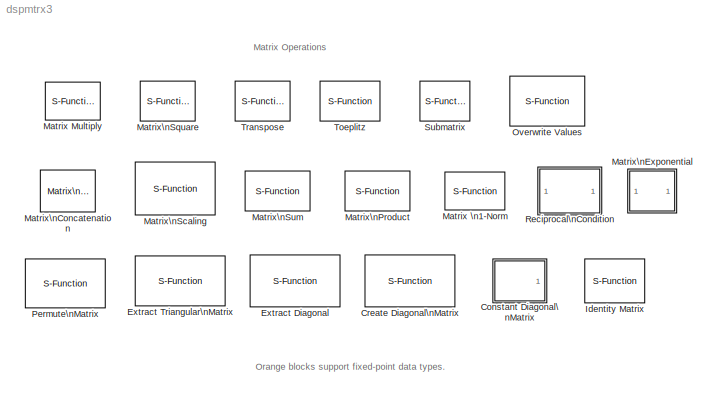
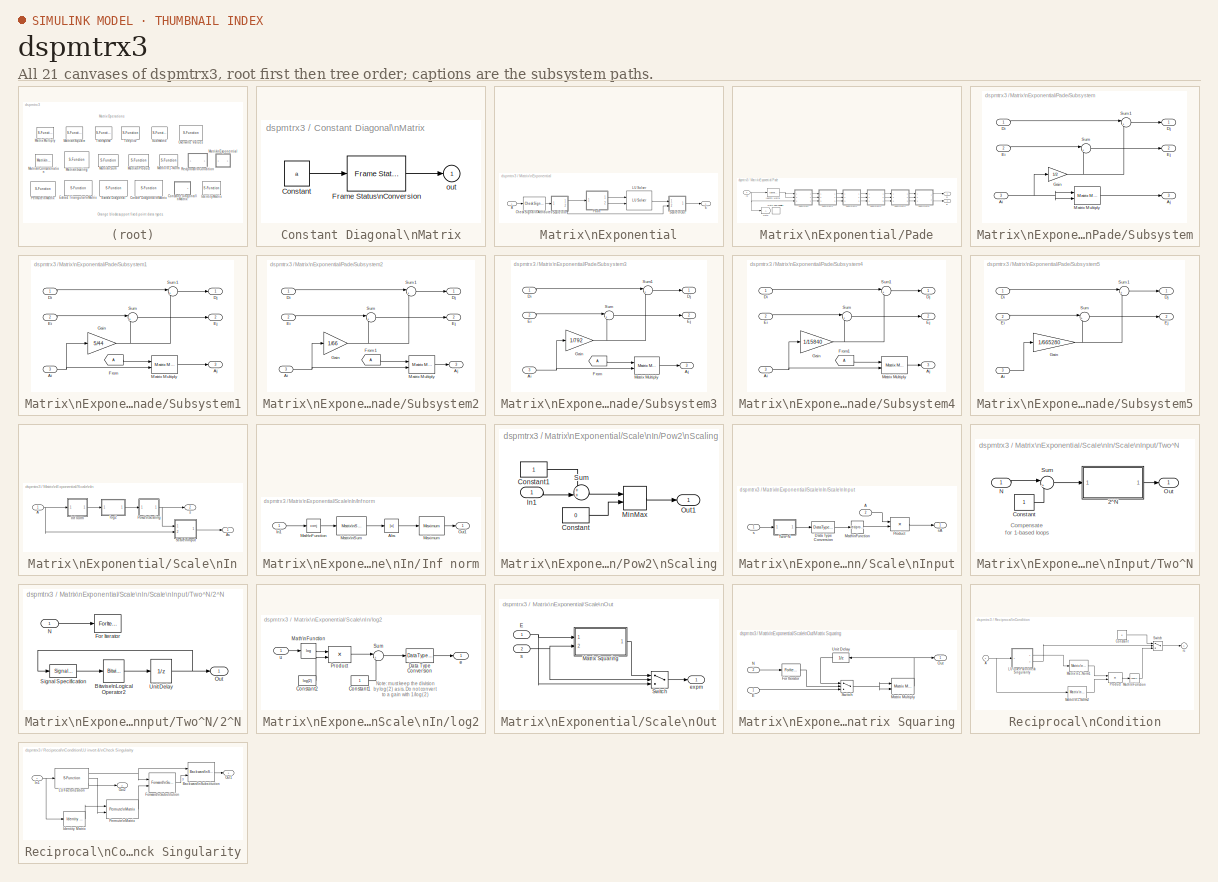
[diagram: thumbnail index - all 21 canvases of the model, root first then tree order]
MODEL dspmtrx3
KIND library
BLOCK [SubSystem] Constant Diagonal\nMatrix
  CopyFcn = dspfixptcopycallback
  MaskCallbackString = ||||dspblkconstdiag;|||dspblkconstdiag;|dspblkconstdiag;|
  MaskDescription = Generate a diagonal matrix having elements specified by a vector constant.
  MaskDisplay = plot(x,y)
  MaskEnableString = on,on,off,off,on,on,on,on,on,on
  MaskHelp = web(dspbhelp);
  MaskIconFrame = on
  MaskIconOpaque = on
  MaskIconRotate = none
  MaskIconUnits = autoscale
  MaskInitialization = [a,x,y] = dspblkconstdiag('icon',q);\ndspblkconstdiag('init');
  MaskPromptString = Constant(s) along diagonal:|Frame-based output|------- Show additional parameters --------|Allow overrides by DSP Fixed-Point Attributes blocks|Output data type:|Signed|Word length:|User-defined data type:|Set fraction length in output to:|Fraction length:
  MaskSelfModifiable = on
  MaskStyleString = edit,checkbox,checkbox,checkbox,popup(double|single|int8|uint8|int16|uint16|int32|uint32|boolean|Fixed-point|User-defined|Inherit from 'Constant(s) along diagonal'|Inherit via back propagation),checkbox,edit,edit,popup(Best precision|User-defined),edit
  MaskTabNameString = Main,Main,Main,Main,Data Types,Data Types,Data Types,Data Types,Data Types,Data Types
  MaskToolTipString = on,on,on,on,on,on,on,on,on,on
  MaskTunableValueString = on,off,off,off,off,off,off,off,off,off
  MaskType = Constant Diagonal Matrix
  MaskValueString = ones(1,3)|off|off|on|Inherit from 'Constant(s) along diagonal'|on|16|sfix(16)|Best precision|15
  MaskVarAliasString = ,,,,,,,,,
  MaskVariables = q=@1;frame=@2;additionalParams=@3;allowOverrides=@4;dataType=@5;isSigned=@6;wordLen=@7;udDataType=@8;fracBitsMode=@9;numFracBits=@10;
  MaskVisibilityString = on,on,off,off,on,off,off,off,off,off
  MinAlgLoopOccurrences = off
  Ports = [0, 1]
  PropExecContextAcrossSSBoundary = on
  RTWSystemCode = Auto
  ShowPortLabels = off
  TreatAsAtomicUnit = off
BLOCK [Constant] Constant Diagonal\nMatrix/Constant
  Value = a
BLOCK [Reference] Constant Diagonal\nMatrix/Frame Status\nConversion  REF=dspsigattribs/Frame Status\nConversion
  Ports = [1, 1]
  ShowPortLabels = off
  SourceBlock = dspsigattribs/Frame Status\nConversion
  SourceType = Frame Status Conversion
  growRefPort = off
  outframe = Sample-based
BLOCK [Outport] Constant Diagonal\nMatrix/out
  BusOutputAsStruct = off
  IconDisplay = Port number
  InitialOutput = 0
BLOCK [S-Function] Create Diagonal\nMatrix
  CopyFcn = dspfixptcopycallback
  FunctionName = sdspdiag2
  MaskDescription = Convert a vector of diagonal elements to a full matrix.
  MaskDisplay = plot(x,y);\nport_label('input',1,'D');\nport_label('output',1,'A');
  MaskHelp = web(dspbhelp);
  MaskIconFrame = on
  MaskIconOpaque = on
  MaskIconRotate = none
  MaskIconUnits = normalized
  MaskInitialization = mode = 1;\nx = [.58 .87 .87 .58 .58 NaN 0.45 0.12 NaN 0.525 0.525 0.475 0.475 0.525 0.525 0.565 0.525 ];\ny = [ 0.2 0.2 0.8 0.8 0.2 NaN 0.2 0.8 NaN 0.435 0.475 0.475 0.525 0.525 0.565 0.5 0.435 ];
  MaskSelfModifiable = on
  MaskType = Create Diagonal Matrix
  Parameters = mode
  Ports = [1, 1]
BLOCK [S-Function] Extract Diagonal
  CopyFcn = dspfixptcopycallback
  FunctionName = sdspdiag2
  MaskDescription = Extract the main diagonal of a full matrix.
  MaskDisplay = plot(x,y);\nport_label('input',1,'A');\nport_label('output',1,'D');
  MaskHelp = web(dspbhelp);
  MaskIconFrame = on
  MaskIconOpaque = on
  MaskIconRotate = none
  MaskIconUnits = normalized
  MaskInitialization = mode = 2;\nx = [.58 .87 NaN 0.12 0.45 0.45 0.12 0.12 NaN 0.525 0.525 0.475 0.475 0.525 0.525 0.565 0.525 ];\ny = [ 0.8 0.2 NaN 0.2 0.2 0.8 0.8 0.2 NaN 0.435 0.475 0.475 0.525 0.525 0.565 0.5 0.435 ];
  MaskSelfModifiable = on
  MaskType = Extract Diagonal
  Parameters = mode
  Ports = [1, 1]
BLOCK [S-Function] Extract Triangular\nMatrix
  CopyFcn = dspfixptcopycallback
  FunctionName = sdsptri2
  MaskDescription = Extract upper or lower triangular part of input matrix.
  MaskDisplay = plot(x,y);\nport_label('input',1,'A');\nport_label('output',1,s);\n
  MaskEnableString = on
  MaskHelp = web(dspbhelp);
  MaskIconFrame = on
  MaskIconOpaque = on
  MaskIconRotate = none
  MaskIconUnits = normalized
  MaskInitialization = [s,x,y] = dspblktri(fcn);
  MaskPromptString = Extract:
  MaskSelfModifiable = on
  MaskStyleString = popup(Upper|Lower)
  MaskToolTipString = on
  MaskTunableValueString = on
  MaskType = Extract Triangular Matrix
  MaskValueString = Upper
  MaskVariables = fcn=@1;
  MaskVisibilityString = on
  Parameters = fcn
  Ports = [1, 1]
BLOCK [S-Function] Identity Matrix
  CopyFcn = dspfixptcopycallback
  FunctionName = sdspeye
  MaskCallbackString = dspblkeye|||||dspblkeye|||dspblkeye|dspblkeye|
  MaskDescription = Output an identity matrix.  If the matrix size entered is a scalar, then the output will be a square (symmetric) identity matrix with the number of rows and columns both equal to the specified value.  If the matrix size entered is a two-element vector [M N], then the output will be an asymmetric matrix with the number of rows equal to M, the number of columns equal to N, ones down the diagonal, an...<+101ch>
  MaskDisplay = disp(str)
  MaskEnableString = on,on,on,off,off,on,on,on,on,on,on
  MaskHelp = web(dspbhelp);
  MaskIconFrame = on
  MaskIconOpaque = on
  MaskIconRotate = none
  MaskIconUnits = autoscale
  MaskInitialization = if Inherit,\n   str = 'eye( )';\nelse\n   str = ['eye(' ,num2str(&2),')'];\nend\n[dtInfo,dTypeID]=dspblkeye('init');\nisSigned=dtInfo.DataTypeIsSigned;\nisCustomFloat=dtInfo.DataTypeIsCustomFloat;\nwordLength=dtInfo.DataTypeWordLength;\nfracBits=dtInfo.DataTypeFracOrMantBits;\n
  MaskPromptString = Inherit output port attributes from input port|Matrix size:|Sample time:|------- Show additional parameters --------|Allow overrides by DSP Fixed-Point Attributes blocks|Output data type:|Signed|Word length:|User-defined data type (e.g. sfix(16), float('single')):|Set fraction length in output to:|Fraction length:
  MaskSelfModifiable = on
  MaskStyleString = checkbox,edit,edit,checkbox,checkbox,popup(double|single|int8|uint8|int16|uint16|int32|uint32|boolean|Fixed-point|User-defined|Inherit via back propagation),checkbox,edit,edit,popup(Best precision|User-defined),edit
  MaskTabNameString = Main,Main,Main,Main,Main,Data Types,Data Types,Data Types,Data Types,Data Types,Data Types
  MaskToolTipString = on,on,on,on,on,on,on,on,on,on,on
  MaskTunableValueString = off,off,off,off,off,off,off,off,off,off,off
  MaskType = Identity Matrix
  MaskValueString = off|5|1|off|on|double|on|16|sfix(16)|Best precision|15
  MaskVarAliasString = ,,,,,dtype,,,,,
  MaskVariables = Inherit=@1;N=@2;Ts=@3;additionalParams=@4;allowOverrides=@5;dataType=@6;isSigned=@7;wordLen=@8;udDataType=@9;fracBitsMode=@10;numFracBits=@11;
  MaskVisibilityString = on,on,on,off,off,on,off,off,off,off,off
  Parameters = Inherit,N,Ts,isCustomFloat,isSigned,dTypeID,wordLength,fracBits,1
  Ports = [0, 1]
BLOCK [S-Function] Matrix Multiply
  FunctionName = sdspmmult2
  MaskCallbackString = |
  MaskDescription = Multiply input matrices.
  MaskDisplay = port_label('input',1, 'A'); port_label('input',2, 'B'); port_label('output', 1, 'A*B');
  MaskEnableString = on,on
  MaskHelp = web(dspbhelp);
  MaskIconFrame = on
  MaskIconOpaque = on
  MaskIconRotate = none
  MaskIconUnits = autoscale
  MaskInitialization = dspblkmmult(numInputPorts);\n
  MaskPromptString = Number of input ports:|Optimization:
  MaskSelfModifiable = on
  MaskStyleString = edit,popup(None|Memory|Flops)
  MaskTabNameString = ,
  MaskToolTipString = on,on
  MaskTunableValueString = off,off
  MaskType = Matrix Multiply
  MaskValueString = 2|None
  MaskVarAliasString = ,
  MaskVariables = numInputPorts=@1;OptimizationLevel=@2;
  MaskVisibilityString = on,off
  Parameters = numInputPorts,OptimizationLevel
  Ports = [2, 1]
BLOCK [S-Function] Matrix \n1-Norm
  CopyFcn = dspfixptcopycallback
  DialogController = dspDDGCreate
  DialogControllerArgs = DataTag3
  FunctionName = sdspm1norm2
  MaskCallbackString = |||||||||
  MaskDescription = Compute the matrix 1-norm, which is the largest column sum of absolute values. Note that unoriented input signals are treated as oriented column vectors. The output of this block is always oriented.
  MaskDisplay = disp('Matrix\\n1-Norm')
  MaskEnableString = off,on,on,on,on,on,on,on,on,on
  MaskHelp = web(dspbhelp);
  MaskIconFrame = on
  MaskIconOpaque = on
  MaskIconRotate = none
  MaskIconUnits = autoscale
  MaskInitialization = dtInfo = dspGetFixptDataTypeInfo(gcbh,7);
  MaskPromptString = Allow overrides from DSP Fixed-Point Attributes blocks|Fixed-point output attributes:|Output word length:|Output fraction length:|Fixed-point accumulator attributes:|Accumulator word length:|Accumulator fraction length:|Round integer calculations toward:|Saturate on integer overflow|Lock scaling
  MaskSelfModifiable = on
  MaskStyleString = checkbox,popup(Same as accumulator|Same as input|Binary point scaling|Slope and bias scaling|User-defined),edit,edit,popup(Inherit via internal rule|Same as input|Binary point scaling|Slope and bias scaling|User-defined),edit,edit,popup(Floor|Nearest),checkbox,checkbox
  MaskTabNameString = ,,,,,,,,,
  MaskToolTipString = on,on,on,on,on,on,on,on,on,on
  MaskTunableValueString = off,off,off,off,off,off,off,off,off,off
  MaskType = Matrix 1-Norm
  MaskValueString = on|Same as accumulator|16|15|Inherit via internal rule|32|30|Floor|off|off
  MaskVarAliasString = ,,,,,,,,,
  MaskVariables = allowOverrides=@1;outputMode=@2;outputWordLength=@3;outputFracLength=@4;accumMode=@5;accumWordLength=@6;accumFracLength=@7;roundingMode=@8;overflowMode=@9;LockScale=@10;
  MaskVisibilityString = off,on,on,on,on,on,on,on,on,on
  Parameters = dtInfo.accumMode,dtInfo.accumWordLength,dtInfo.accumFracLength,dtInfo.outputMode,dtInfo.outputWordLength,dtInfo.outputFracLength,dtInfo.roundingMode,dtInfo.overflowMode
  Ports = [1, 1]
BLOCK [Reference] Matrix\nConcatenation  REF=simulink/Math\nOperations/Matrix\nConcatenation
  Ports = [2, 1]
  SourceBlock = simulink/Math\nOperations/Matrix\nConcatenation
  SourceType = Matrix Concatenation
  catMethod = Horizontal
  numInports = 2
BLOCK [SubSystem] Matrix\nExponential
  MaskDescription = Compute the matrix exponential, using a scaling and squaring algorithm with a Pade approximation.  Matrix must be square.
  MaskDisplay = disp('expm')
  MaskHelp = web(dspbhelp);
  MaskIconFrame = on
  MaskIconOpaque = on
  MaskIconRotate = none
  MaskIconUnits = autoscale
  MaskType = Matrix Exponential
  MinAlgLoopOccurrences = off
  Ports = [1, 1]
  PropExecContextAcrossSSBoundary = on
  RTWSystemCode = Auto
  TreatAsAtomicUnit = off
BLOCK [Inport] Matrix\nExponential/A
  IconDisplay = Port number
  LatchInput = off
BLOCK [Reference] Matrix\nExponential/Check Signal\nAttributes  REF=dspsigattribs/Check Signal\nAttributes
  Complexity = Ignore
  DatatypeCheckMethod = Is...
  DatatypeGeneral = Floating-point
  Dimensions = Square matrix (2-D)
  DimsCheckMethod = Is...
  DtypeFixedSpecific = Any fixed-point
  DtypeFloatSpecific = Any floating-point
  DtypeIntSpecific = Any integer
  Frame = Sample-based
  Ports = [1, 1]
  SampleMode = Ignore
  ShowPortLabels = on
  SigAttribCheckMethod = Does not match attributes exactly
  SourceBlock = dspsigattribs/Check Signal\nAttributes
  SourceType = Check Signal Attributes
BLOCK [Outport] Matrix\nExponential/E
  BusOutputAsStruct = off
  IconDisplay = Port number
BLOCK [Reference] Matrix\nExponential/LU Solver  REF=dspsolvers/LU Solver
  Ports = [2, 1]
  ShowPortLabels = on
  SourceBlock = dspsolvers/LU Solver
  SourceType = LU Solver
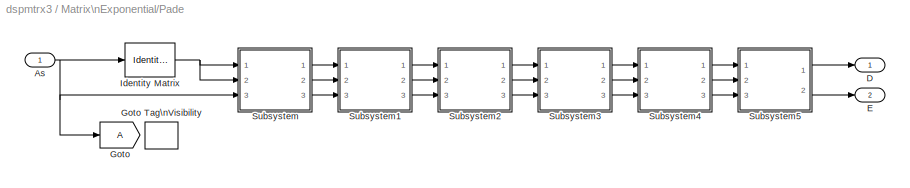
BLOCK [SubSystem] Matrix\nExponential/Pade
  MaskDisplay = disp('Pade\\nApprox')
  MaskIconFrame = on
  MaskIconOpaque = off
  MaskIconRotate = none
  MaskIconUnits = autoscale
  MinAlgLoopOccurrences = off
  Ports = [1, 2]
  PropExecContextAcrossSSBoundary = on
  RTWSystemCode = Auto
  TreatAsAtomicUnit = off
BLOCK [Inport] Matrix\nExponential/Pade/As
  IconDisplay = Port number
  LatchInput = off
BLOCK [Outport] Matrix\nExponential/Pade/D
  BusOutputAsStruct = off
  IconDisplay = Port number
BLOCK [Outport] Matrix\nExponential/Pade/E
  BusOutputAsStruct = off
  IconDisplay = Port number
  Port = 2
BLOCK [Goto] Matrix\nExponential/Pade/Goto
  DialogController = Simulink.DDGSource
  GotoTag = A
  TagVisibility = scoped
BLOCK [GotoTagVisibility] Matrix\nExponential/Pade/Goto Tag\nVisibility
BLOCK [Reference] Matrix\nExponential/Pade/Identity Matrix  REF=dspmtrx3/Identity Matrix
  Inherit = on
  N = 5
  Ports = [1, 1]
  SourceBlock = dspmtrx3/Identity Matrix
  SourceType = Identity Matrix
  Ts = 1
  additionalParams = off
  dataType = double
  fracBitsMode = Best precision
  numFracBits = 15
  udDataType = sfix(16)
  wordLen = 16
BLOCK [SubSystem] Matrix\nExponential/Pade/Subsystem
  MaskDisplay = disp('Pade\\n1')
  MaskIconFrame = on
  MaskIconOpaque = off
  MaskIconRotate = none
  MaskIconUnits = autoscale
  MinAlgLoopOccurrences = off
  Ports = [3, 3]
  PropExecContextAcrossSSBoundary = on
  RTWSystemCode = Auto
  TreatAsAtomicUnit = off
BLOCK [Inport] Matrix\nExponential/Pade/Subsystem/Ai
  IconDisplay = Port number
  LatchInput = off
  Port = 3
BLOCK [Outport] Matrix\nExponential/Pade/Subsystem/Aj
  BusOutputAsStruct = off
  IconDisplay = Port number
  Port = 3
BLOCK [Inport] Matrix\nExponential/Pade/Subsystem/Di
  IconDisplay = Port number
  LatchInput = off
BLOCK [Outport] Matrix\nExponential/Pade/Subsystem/Dj
  BusOutputAsStruct = off
  IconDisplay = Port number
BLOCK [Inport] Matrix\nExponential/Pade/Subsystem/Ei
  IconDisplay = Port number
  LatchInput = off
  Port = 2
BLOCK [Outport] Matrix\nExponential/Pade/Subsystem/Ej
  BusOutputAsStruct = off
  IconDisplay = Port number
  Port = 2
BLOCK [Gain] Matrix\nExponential/Pade/Subsystem/Gain
  Gain = 1/2
  ParameterDataType = float('single')
BLOCK [Reference] Matrix\nExponential/Pade/Subsystem/Matrix Multiply  REF=dspmtrx3/Matrix Multiply
  OptimizationLevel = None
  Ports = [2, 1]
  SourceBlock = dspmtrx3/Matrix Multiply
  SourceType = Matrix Multiply
  numInputPorts = 2
BLOCK [Sum] Matrix\nExponential/Pade/Subsystem/Sum
  IconShape = round
  InputSameDT = off
  Inputs = |++
  OutDataTypeMode = Inherit via back propagation
  Ports = [2, 1]
BLOCK [Sum] Matrix\nExponential/Pade/Subsystem/Sum1
  IconShape = round
  InputSameDT = off
  Inputs = |+-
  OutDataTypeMode = Inherit via back propagation
  Ports = [2, 1]
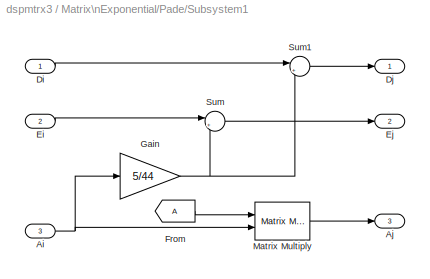
BLOCK [SubSystem] Matrix\nExponential/Pade/Subsystem1
  MaskDisplay = disp('Pade\\n2')
  MaskIconFrame = on
  MaskIconOpaque = off
  MaskIconRotate = none
  MaskIconUnits = autoscale
  MinAlgLoopOccurrences = off
  Ports = [3, 3]
  PropExecContextAcrossSSBoundary = on
  RTWSystemCode = Auto
  TreatAsAtomicUnit = off
BLOCK [Inport] Matrix\nExponential/Pade/Subsystem1/Ai
  IconDisplay = Port number
  LatchInput = off
  Port = 3
BLOCK [Outport] Matrix\nExponential/Pade/Subsystem1/Aj
  BusOutputAsStruct = off
  IconDisplay = Port number
  Port = 3
BLOCK [Inport] Matrix\nExponential/Pade/Subsystem1/Di
  IconDisplay = Port number
  LatchInput = off
BLOCK [Outport] Matrix\nExponential/Pade/Subsystem1/Dj
  BusOutputAsStruct = off
  IconDisplay = Port number
BLOCK [Inport] Matrix\nExponential/Pade/Subsystem1/Ei
  IconDisplay = Port number
  LatchInput = off
  Port = 2
BLOCK [Outport] Matrix\nExponential/Pade/Subsystem1/Ej
  BusOutputAsStruct = off
  IconDisplay = Port number
  Port = 2
BLOCK [From] Matrix\nExponential/Pade/Subsystem1/From
  CloseFcn = tagdialog Close
  DialogController = Simulink.DDGSource
  GotoTag = A
BLOCK [Gain] Matrix\nExponential/Pade/Subsystem1/Gain
  Gain = 5/44
  SaturateOnIntegerOverflow = off
BLOCK [Reference] Matrix\nExponential/Pade/Subsystem1/Matrix Multiply  REF=dspmtrx3/Matrix Multiply
  OptimizationLevel = None
  Ports = [2, 1]
  SourceBlock = dspmtrx3/Matrix Multiply
  SourceType = Matrix Multiply
  numInputPorts = 2
BLOCK [Sum] Matrix\nExponential/Pade/Subsystem1/Sum
  IconShape = round
  InputSameDT = off
  Inputs = |++
  OutDataTypeMode = Inherit via back propagation
  Ports = [2, 1]
BLOCK [Sum] Matrix\nExponential/Pade/Subsystem1/Sum1
  IconShape = round
  InputSameDT = off
  Inputs = |++
  OutDataTypeMode = Inherit via back propagation
  Ports = [2, 1]
BLOCK [SubSystem] Matrix\nExponential/Pade/Subsystem2
  MaskDisplay = disp('Pade\\n3')
  MaskIconFrame = on
  MaskIconOpaque = off
  MaskIconRotate = none
  MaskIconUnits = autoscale
  MinAlgLoopOccurrences = off
  Ports = [3, 3]
  PropExecContextAcrossSSBoundary = on
  RTWSystemCode = Auto
  TreatAsAtomicUnit = off
BLOCK [Inport] Matrix\nExponential/Pade/Subsystem2/Ai
  IconDisplay = Port number
  LatchInput = off
  Port = 3
BLOCK [Outport] Matrix\nExponential/Pade/Subsystem2/Aj
  BusOutputAsStruct = off
  IconDisplay = Port number
  Port = 3
BLOCK [Inport] Matrix\nExponential/Pade/Subsystem2/Di
  IconDisplay = Port number
  LatchInput = off
BLOCK [Outport] Matrix\nExponential/Pade/Subsystem2/Dj
  BusOutputAsStruct = off
  IconDisplay = Port number
BLOCK [Inport] Matrix\nExponential/Pade/Subsystem2/Ei
  IconDisplay = Port number
  LatchInput = off
  Port = 2
BLOCK [Outport] Matrix\nExponential/Pade/Subsystem2/Ej
  BusOutputAsStruct = off
  IconDisplay = Port number
  Port = 2
BLOCK [From] Matrix\nExponential/Pade/Subsystem2/From1
  CloseFcn = tagdialog Close
  DialogController = Simulink.DDGSource
  GotoTag = A
BLOCK [Gain] Matrix\nExponential/Pade/Subsystem2/Gain
  Gain = 1/66
  SaturateOnIntegerOverflow = off
BLOCK [Reference] Matrix\nExponential/Pade/Subsystem2/Matrix Multiply  REF=dspmtrx3/Matrix Multiply
  OptimizationLevel = None
  Ports = [2, 1]
  SourceBlock = dspmtrx3/Matrix Multiply
  SourceType = Matrix Multiply
  numInputPorts = 2
BLOCK [Sum] Matrix\nExponential/Pade/Subsystem2/Sum
  IconShape = round
  InputSameDT = off
  Inputs = |++
  OutDataTypeMode = Inherit via back propagation
  Ports = [2, 1]
BLOCK [Sum] Matrix\nExponential/Pade/Subsystem2/Sum1
  IconShape = round
  InputSameDT = off
  Inputs = |+-
  OutDataTypeMode = Inherit via back propagation
  Ports = [2, 1]
BLOCK [SubSystem] Matrix\nExponential/Pade/Subsystem3
  MaskDisplay = disp('Pade\\n4')
  MaskIconFrame = on
  MaskIconOpaque = off
  MaskIconRotate = none
  MaskIconUnits = autoscale
  MinAlgLoopOccurrences = off
  Ports = [3, 3]
  PropExecContextAcrossSSBoundary = on
  RTWSystemCode = Auto
  TreatAsAtomicUnit = off
BLOCK [Inport] Matrix\nExponential/Pade/Subsystem3/Ai
  IconDisplay = Port number
  LatchInput = off
  Port = 3
BLOCK [Outport] Matrix\nExponential/Pade/Subsystem3/Aj
  BusOutputAsStruct = off
  IconDisplay = Port number
  Port = 3
BLOCK [Inport] Matrix\nExponential/Pade/Subsystem3/Di
  IconDisplay = Port number
  LatchInput = off
BLOCK [Outport] Matrix\nExponential/Pade/Subsystem3/Dj
  BusOutputAsStruct = off
  IconDisplay = Port number
BLOCK [Inport] Matrix\nExponential/Pade/Subsystem3/Ei
  IconDisplay = Port number
  LatchInput = off
  Port = 2
BLOCK [Outport] Matrix\nExponential/Pade/Subsystem3/Ej
  BusOutputAsStruct = off
  IconDisplay = Port number
  Port = 2
BLOCK [From] Matrix\nExponential/Pade/Subsystem3/From
  CloseFcn = tagdialog Close
  DialogController = Simulink.DDGSource
  GotoTag = A
BLOCK [Gain] Matrix\nExponential/Pade/Subsystem3/Gain
  Gain = 1/792
  SaturateOnIntegerOverflow = off
BLOCK [Reference] Matrix\nExponential/Pade/Subsystem3/Matrix Multiply  REF=dspmtrx3/Matrix Multiply
  OptimizationLevel = None
  Ports = [2, 1]
  SourceBlock = dspmtrx3/Matrix Multiply
  SourceType = Matrix Multiply
  numInputPorts = 2
BLOCK [Sum] Matrix\nExponential/Pade/Subsystem3/Sum
  IconShape = round
  InputSameDT = off
  Inputs = |++
  OutDataTypeMode = Inherit via back propagation
  Ports = [2, 1]
BLOCK [Sum] Matrix\nExponential/Pade/Subsystem3/Sum1
  IconShape = round
  InputSameDT = off
  Inputs = |++
  OutDataTypeMode = Inherit via back propagation
  Ports = [2, 1]
BLOCK [SubSystem] Matrix\nExponential/Pade/Subsystem4
  MaskDisplay = disp('Pade\\n5')
  MaskIconFrame = on
  MaskIconOpaque = off
  MaskIconRotate = none
  MaskIconUnits = autoscale
  MinAlgLoopOccurrences = off
  Ports = [3, 3]
  PropExecContextAcrossSSBoundary = on
  RTWSystemCode = Auto
  TreatAsAtomicUnit = off
BLOCK [Inport] Matrix\nExponential/Pade/Subsystem4/Ai
  IconDisplay = Port number
  LatchInput = off
  Port = 3
BLOCK [Outport] Matrix\nExponential/Pade/Subsystem4/Aj
  BusOutputAsStruct = off
  IconDisplay = Port number
  Port = 3
BLOCK [Inport] Matrix\nExponential/Pade/Subsystem4/Di
  IconDisplay = Port number
  LatchInput = off
BLOCK [Outport] Matrix\nExponential/Pade/Subsystem4/Dj
  BusOutputAsStruct = off
  IconDisplay = Port number
BLOCK [Inport] Matrix\nExponential/Pade/Subsystem4/Ei
  IconDisplay = Port number
  LatchInput = off
  Port = 2
BLOCK [Outport] Matrix\nExponential/Pade/Subsystem4/Ej
  BusOutputAsStruct = off
  IconDisplay = Port number
  Port = 2
BLOCK [From] Matrix\nExponential/Pade/Subsystem4/From1
  CloseFcn = tagdialog Close
  DialogController = Simulink.DDGSource
  GotoTag = A
BLOCK [Gain] Matrix\nExponential/Pade/Subsystem4/Gain
  Gain = 1/15840
  SaturateOnIntegerOverflow = off
BLOCK [Reference] Matrix\nExponential/Pade/Subsystem4/Matrix Multiply  REF=dspmtrx3/Matrix Multiply
  OptimizationLevel = None
  Ports = [2, 1]
  SourceBlock = dspmtrx3/Matrix Multiply
  SourceType = Matrix Multiply
  numInputPorts = 2
BLOCK [Sum] Matrix\nExponential/Pade/Subsystem4/Sum
  IconShape = round
  InputSameDT = off
  Inputs = |++
  OutDataTypeMode = Inherit via back propagation
  Ports = [2, 1]
BLOCK [Sum] Matrix\nExponential/Pade/Subsystem4/Sum1
  IconShape = round
  InputSameDT = off
  Inputs = |+-
  OutDataTypeMode = Inherit via back propagation
  Ports = [2, 1]
BLOCK [SubSystem] Matrix\nExponential/Pade/Subsystem5
  MaskDisplay = disp('Pade\\n6')
  MaskIconFrame = on
  MaskIconOpaque = off
  MaskIconRotate = none
  MaskIconUnits = autoscale
  MinAlgLoopOccurrences = off
  Ports = [3, 2]
  PropExecContextAcrossSSBoundary = on
  RTWSystemCode = Auto
  TreatAsAtomicUnit = off
BLOCK [Inport] Matrix\nExponential/Pade/Subsystem5/Ai
  IconDisplay = Port number
  LatchInput = off
  Port = 3
BLOCK [Inport] Matrix\nExponential/Pade/Subsystem5/Di
  IconDisplay = Port number
  LatchInput = off
BLOCK [Outport] Matrix\nExponential/Pade/Subsystem5/Dj
  BusOutputAsStruct = off
  IconDisplay = Port number
BLOCK [Inport] Matrix\nExponential/Pade/Subsystem5/Ei
  IconDisplay = Port number
  LatchInput = off
  Port = 2
BLOCK [Outport] Matrix\nExponential/Pade/Subsystem5/Ej
  BusOutputAsStruct = off
  IconDisplay = Port number
  Port = 2
BLOCK [Gain] Matrix\nExponential/Pade/Subsystem5/Gain
  Gain = 1/665280
  SaturateOnIntegerOverflow = off
BLOCK [Sum] Matrix\nExponential/Pade/Subsystem5/Sum
  IconShape = round
  InputSameDT = off
  Inputs = |++
  OutDataTypeMode = Inherit via back propagation
  Ports = [2, 1]
BLOCK [Sum] Matrix\nExponential/Pade/Subsystem5/Sum1
  IconShape = round
  InputSameDT = off
  Inputs = |++
  OutDataTypeMode = Inherit via back propagation
  Ports = [2, 1]
BLOCK [SubSystem] Matrix\nExponential/Scale\nIn
  MinAlgLoopOccurrences = off
  Ports = [1, 2]
  PropExecContextAcrossSSBoundary = on
  RTWSystemCode = Auto
  TreatAsAtomicUnit = off
BLOCK [Inport] Matrix\nExponential/Scale\nIn/A
  IconDisplay = Port number
  LatchInput = off
BLOCK [Outport] Matrix\nExponential/Scale\nIn/As
  BusOutputAsStruct = off
  IconDisplay = Port number
BLOCK [SubSystem] Matrix\nExponential/Scale\nIn/Inf norm
  MaskDisplay = disp('inf\\nnorm')
  MaskIconFrame = on
  MaskIconOpaque = on
  MaskIconRotate = none
  MaskIconUnits = autoscale
  MinAlgLoopOccurrences = off
  Ports = [1, 1]
  PropExecContextAcrossSSBoundary = on
  RTWSystemCode = Auto
  TreatAsAtomicUnit = off
BLOCK [Abs] Matrix\nExponential/Scale\nIn/Inf norm/Abs
BLOCK [Inport] Matrix\nExponential/Scale\nIn/Inf norm/In1
  IconDisplay = Port number
  LatchInput = off
BLOCK [Math] Matrix\nExponential/Scale\nIn/Inf norm/Math\nFunction
  Operator = conj
  Ports = [1, 1]
BLOCK [Reference] Matrix\nExponential/Scale\nIn/Inf norm/Matrix\nSum  REF=dspmtrx3/Matrix\nSum
  Dim = Rows
  Ports = [1, 1]
  SourceBlock = dspmtrx3/Matrix\nSum
  SourceType = Matrix Sum
  accumFracLength = 30
  accumMode = Inherit via internal rule
  accumWordLength = 40
  additionalParams = off
  allowOverrides = on
  outputFracLength = 30
  outputMode = Same as accumulator
  outputWordLength = 32
  overflowMode = off
  roundingMode = Floor
BLOCK [Reference] Matrix\nExponential/Scale\nIn/Inf norm/Maximum  REF=dspstat3/Maximum
  Ports = [1, 1]
  SourceBlock = dspstat3/Maximum
  SourceType = Maximum
  accumFracLength = 30
  accumMode = Same as product output
  accumWordLength = 32
  additionalParams = off
  allowOverrides = on
  fcn = Value
  overflowMode = off
  prodOutputFracLength = 30
  prodOutputMode = Same as input
  prodOutputWordLength = 32
  reset = None
  roundingMode = Floor
BLOCK [Outport] Matrix\nExponential/Scale\nIn/Inf norm/Out1
  BusOutputAsStruct = off
  IconDisplay = Port number
BLOCK [SubSystem] Matrix\nExponential/Scale\nIn/Pow2\nScaling
  MaskDisplay = disp('s-scaling')
  MaskIconFrame = on
  MaskIconOpaque = on
  MaskIconRotate = none
  MaskIconUnits = autoscale
  MinAlgLoopOccurrences = off
  Ports = [1, 1]
  PropExecContextAcrossSSBoundary = on
  RTWSystemCode = Auto
  TreatAsAtomicUnit = off
BLOCK [Constant] Matrix\nExponential/Scale\nIn/Pow2\nScaling/Constant
  OutDataTypeMode = int32
  Value = 0
  VectorParams1D = off
BLOCK [Constant] Matrix\nExponential/Scale\nIn/Pow2\nScaling/Constant1
  OutDataTypeMode = int32
  VectorParams1D = off
BLOCK [Inport] Matrix\nExponential/Scale\nIn/Pow2\nScaling/In1
  IconDisplay = Port number
  LatchInput = off
BLOCK [MinMax] Matrix\nExponential/Scale\nIn/Pow2\nScaling/MinMax
  Function = max
  Inputs = 2
  Ports = [2, 1]
BLOCK [Outport] Matrix\nExponential/Scale\nIn/Pow2\nScaling/Out1
  BusOutputAsStruct = off
  IconDisplay = Port number
BLOCK [Sum] Matrix\nExponential/Scale\nIn/Pow2\nScaling/Sum
  IconShape = round
  InputSameDT = off
  Inputs = ++|
  OutDataTypeMode = Inherit via internal rule
  Ports = [2, 1]
BLOCK [SubSystem] Matrix\nExponential/Scale\nIn/Scale\nInput
  MinAlgLoopOccurrences = off
  Ports = [2, 1]
  PropExecContextAcrossSSBoundary = on
  RTWSystemCode = Auto
  TreatAsAtomicUnit = off
BLOCK [Inport] Matrix\nExponential/Scale\nIn/Scale\nInput/A
  IconDisplay = Port number
  LatchInput = off
  Port = 2
BLOCK [DataTypeConversion] Matrix\nExponential/Scale\nIn/Scale\nInput/Data Type Conversion
BLOCK [Math] Matrix\nExponential/Scale\nIn/Scale\nInput/Math\nFunction
  Operator = reciprocal
  Ports = [1, 1]
BLOCK [Product] Matrix\nExponential/Scale\nIn/Scale\nInput/Product
  InputSameDT = off
  Ports = [2, 1]
  RndMeth = Floor
BLOCK [SubSystem] Matrix\nExponential/Scale\nIn/Scale\nInput/Two^N
  MaskDisplay = disp('2.^N')
  MaskIconFrame = on
  MaskIconOpaque = on
  MaskIconRotate = none
  MaskIconUnits = autoscale
  MinAlgLoopOccurrences = off
  Ports = [1, 1]
  PropExecContextAcrossSSBoundary = on
  RTWSystemCode = Auto
  TreatAsAtomicUnit = off
BLOCK [SubSystem] Matrix\nExponential/Scale\nIn/Scale\nInput/Two^N/2^N
  MinAlgLoopOccurrences = off
  Ports = [1, 1]
  PropExecContextAcrossSSBoundary = on
  RTWSystemCode = Auto
  TreatAsAtomicUnit = on
BLOCK [Reference] Matrix\nExponential/Scale\nIn/Scale\nInput/Two^N/2^N/Bitwise\nLogical Operator2  REF=simulink/Math\nOperations/Bitwise\nLogical Operator
  Operand2 = 1
  Operator = SHIFT_LEFT
  Ports = [1, 1]
  SourceBlock = simulink/Math\nOperations/Bitwise\nLogical Operator
  SourceType = BitwiseOperator
BLOCK [ForIterator] Matrix\nExponential/Scale\nIn/Scale\nInput/Two^N/2^N/For Iterator
  IterationSource = external
  Ports = [1]
  ResetStates = reset
  ShowIterationPort = off
BLOCK [Inport] Matrix\nExponential/Scale\nIn/Scale\nInput/Two^N/2^N/N
  IconDisplay = Port number
  LatchInput = off
BLOCK [Outport] Matrix\nExponential/Scale\nIn/Scale\nInput/Two^N/2^N/Out
  BusOutputAsStruct = off
  IconDisplay = Port number
BLOCK [Reference] Matrix\nExponential/Scale\nIn/Scale\nInput/Two^N/2^N/Signal Specification  REF=simulink/Signal\nAttributes/Signal Specification
  D = -1
  DataType = uint32
  OutDataType = sfix(16)
  OutScaling = 2^0
  Ports = [1, 1]
  SamplingMode = auto
  SignalType = auto
  SourceBlock = simulink/Signal\nAttributes/Signal Specification
  SourceType = Signal Specification
  Ts = -1
BLOCK [UnitDelay] Matrix\nExponential/Scale\nIn/Scale\nInput/Two^N/2^N/Unit Delay
  SampleTime = -1
  X0 = uint32(1)
BLOCK [Constant] Matrix\nExponential/Scale\nIn/Scale\nInput/Two^N/Constant
  OutDataTypeMode = Inherit via back propagation
  VectorParams1D = off
BLOCK [Inport] Matrix\nExponential/Scale\nIn/Scale\nInput/Two^N/N
  IconDisplay = Port number
  LatchInput = off
BLOCK [Outport] Matrix\nExponential/Scale\nIn/Scale\nInput/Two^N/Out
  BusOutputAsStruct = off
  IconDisplay = Port number
BLOCK [Sum] Matrix\nExponential/Scale\nIn/Scale\nInput/Two^N/Sum
  IconShape = round
  InputSameDT = off
  Inputs = |++
  OutDataTypeMode = Inherit via internal rule
  Ports = [2, 1]
BLOCK [Inport] Matrix\nExponential/Scale\nIn/Scale\nInput/s
  IconDisplay = Port number
  LatchInput = off
BLOCK [Outport] Matrix\nExponential/Scale\nIn/Scale\nInput/sA
  BusOutputAsStruct = off
  IconDisplay = Port number
BLOCK [SubSystem] Matrix\nExponential/Scale\nIn/log2
  MaskDisplay = disp('log2')
  MaskIconFrame = on
  MaskIconOpaque = off
  MaskIconRotate = none
  MaskIconUnits = autoscale
  MinAlgLoopOccurrences = off
  Ports = [1, 1]
  PropExecContextAcrossSSBoundary = on
  RTWSystemCode = Auto
  TreatAsAtomicUnit = off
BLOCK [Constant] Matrix\nExponential/Scale\nIn/log2/Constant1
  OutDataTypeMode = Inherit via back propagation
  VectorParams1D = off
BLOCK [Constant] Matrix\nExponential/Scale\nIn/log2/Constant2
  OutDataTypeMode = Inherit via back propagation
  Value = log(2)
  VectorParams1D = off
BLOCK [DataTypeConversion] Matrix\nExponential/Scale\nIn/log2/Data Type Conversion
  OutDataTypeMode = int32
BLOCK [Math] Matrix\nExponential/Scale\nIn/log2/Math\nFunction
  Operator = log
  Ports = [1, 1]
BLOCK [Product] Matrix\nExponential/Scale\nIn/log2/Product
  InputSameDT = off
  Inputs = */
  Ports = [2, 1]
  RndMeth = Floor
BLOCK [Sum] Matrix\nExponential/Scale\nIn/log2/Sum
  IconShape = round
  InputSameDT = off
  Inputs = |++
  OutDataTypeMode = Inherit via back propagation
  Ports = [2, 1]
  RndMeth = Ceiling
  SaturateOnIntegerOverflow = off
BLOCK [Outport] Matrix\nExponential/Scale\nIn/log2/e
  BusOutputAsStruct = off
  IconDisplay = Port number
BLOCK [Inport] Matrix\nExponential/Scale\nIn/log2/u
  IconDisplay = Port number
  LatchInput = off
BLOCK [Outport] Matrix\nExponential/Scale\nIn/s
  BusOutputAsStruct = off
  IconDisplay = Port number
  Port = 2
BLOCK [SubSystem] Matrix\nExponential/Scale\nOut
  MinAlgLoopOccurrences = off
  Ports = [2, 1]
  PropExecContextAcrossSSBoundary = on
  RTWSystemCode = Auto
  TreatAsAtomicUnit = off
BLOCK [Inport] Matrix\nExponential/Scale\nOut/E
  IconDisplay = Port number
  LatchInput = off
BLOCK [SubSystem] Matrix\nExponential/Scale\nOut/Matrix Squaring
  MinAlgLoopOccurrences = off
  Ports = [2, 1]
  PropExecContextAcrossSSBoundary = on
  RTWSystemCode = Auto
  TreatAsAtomicUnit = on
BLOCK [Inport] Matrix\nExponential/Scale\nOut/Matrix Squaring/E
  IconDisplay = Port number
  LatchInput = off
BLOCK [ForIterator] Matrix\nExponential/Scale\nOut/Matrix Squaring/For Iterator
  IterationSource = external
  Ports = [1, 1]
  ResetStates = reset
BLOCK [Reference] Matrix\nExponential/Scale\nOut/Matrix Squaring/Matrix Multiply  REF=dspmtrx3/Matrix Multiply
  OptimizationLevel = None
  Ports = [2, 1]
  SourceBlock = dspmtrx3/Matrix Multiply
  SourceType = Matrix Multiply
  numInputPorts = 2
BLOCK [Inport] Matrix\nExponential/Scale\nOut/Matrix Squaring/N
  IconDisplay = Port number
  LatchInput = off
  Port = 2
BLOCK [Outport] Matrix\nExponential/Scale\nOut/Matrix Squaring/Out
  BusOutputAsStruct = off
  IconDisplay = Port number
BLOCK [Switch] Matrix\nExponential/Scale\nOut/Matrix Squaring/Switch
  Criteria = u2 > Threshold
  InputSameDT = off
  Threshold = 1
BLOCK [UnitDelay] Matrix\nExponential/Scale\nOut/Matrix Squaring/Unit Delay
  SampleTime = -1
BLOCK [Switch] Matrix\nExponential/Scale\nOut/Switch
  Criteria = u2 ~= 0
  InputSameDT = off
BLOCK [Outport] Matrix\nExponential/Scale\nOut/expm
  BusOutputAsStruct = off
  IconDisplay = Port number
BLOCK [Inport] Matrix\nExponential/Scale\nOut/s
  IconDisplay = Port number
  LatchInput = off
  Port = 2
BLOCK [S-Function] Matrix\nProduct
  CopyFcn = dspfixptcopycallback
  DialogController = dspDDGCreate
  DialogControllerArgs = DataTag0
  FunctionName = sdspmsumprod
  MaskCallbackString = |||||||||||||||||
  MaskDescription = Product of matrix elements along the row or column dimension. Note that 1-D input signals produce a single scalar output equal to the product of the individual elements.\n\nThe accumulator attributes are only used with complex fixed-point inputs.
  MaskDisplay = disp(str);
  MaskEnableString = on,off,off,on,on,on,on,on,on,on,on,on,on,on,on,on,on,on
  MaskHelp = web(dspbhelp);
  MaskIconFrame = on
  MaskIconOpaque = on
  MaskIconRotate = none
  MaskIconUnits = autoscale
  MaskInitialization = if (Dim==1), str='Row\\nProduct';\nelse str='Column\\nProduct';\nend\n\n%misc         1 USED\n%output       2 USED\n%accum        4 USED\n%prodOutput   8 USED\n%memory      16\n%firstCoeff  32\n%secondCoeff 64\n%thirdCoeff 128\n%interProd  256 USED\n%1+2+4+8+256 = 271\ndtInfo = dspGetFixptDataTypeInfo(gcbh,271);\n
  MaskPromptString = Multiply along:|------- Show additional parameters -------|Allow overrides from DSP Fixed-Point Attributes blocks|Fixed-point output attributes:|Output word length:|Output fraction length:|Fixed-point accumulator attributes:|Accumulator word length:|Accumulator fraction length:|Fixed-point product output attributes:|Product output word length:|Product output fraction length:|Fixed-point intermedia...<+171ch>
  MaskSelfModifiable = on
  MaskStyleString = popup(Rows|Columns),checkbox,checkbox,popup(Same as product output|Same as input|Binary point scaling|Slope and bias scaling|User-defined),edit,edit,popup(Inherit via internal rule|Same as product output|Same as input|Binary point scaling|Slope and bias scaling|User-defined),edit,edit,popup(Inherit via internal rule|Same as input|Binary point scaling|Slope and bias scaling|User-defined),edit,edit,...<+126ch>
  MaskTabNameString = ,,,,,,,,,,,,,,,,,
  MaskToolTipString = on,on,on,on,on,on,on,on,on,on,on,on,on,on,on,on,on,on
  MaskTunableValueString = off,off,off,off,off,off,off,off,off,off,off,off,off,off,off,off,off,off
  MaskType = Matrix Product
  MaskValueString = Columns|off|on|Same as product output|16|15|Inherit via internal rule|32|30|Inherit via internal rule|32|30|Same as input|16|15|Floor|off|off
  MaskVarAliasString = ,,,,,,,,,,,,,,,,,
  MaskVariables = Dim=@1;additionalParams=@2;allowOverrides=@3;outputMode=@4;outputWordLength=@5;outputFracLength=@6;accumMode=@7;accumWordLength=@8;accumFracLength=@9;prodOutputMode=@10;prodOutputWordLength=@11;prodOutputFracLength=@12;interProdMode=@13;interProdWordLength=@14;interProdFracLength=@15;roundingMode=@16;overflowMode=@17;LockScale=@18;
  MaskVisibilityString = on,off,off,on,on,on,on,on,on,on,on,on,on,on,on,on,on,on
  Parameters = Dim,2,dtInfo.interProdMode,dtInfo.interProdWordLength,dtInfo.interProdFracLength,dtInfo.prodOutputMode,dtInfo.prodOutputWordLength,dtInfo.prodOutputFracLength,dtInfo.accumMode,dtInfo.accumWordLength,dtInfo.accumFracLength,dtInfo.outputMode,dtInfo.outputWordLength,dtInfo.outputFracLength,dtInfo.roundingMode,dtInfo.overflowMode
  Ports = [1, 1]
BLOCK [S-Function] Matrix\nScaling
  CopyFcn = dspfixptcopycallback
  DialogController = dspDDGCreate
  DialogControllerArgs = DataTag1
  FunctionName = sdspdmult2
  MaskCallbackString = |||||||||||||||||||
  MaskDescription = Scale the columns or rows of a matrix A by the elements of a vector D.  This is equivalent to multiplying a full matrix (A) by a diagonal (D), and vice versa. Note that unoriented input signals are treated as oriented column vectors. The output of this block is always oriented.\n\nFor some fixed-point modes, the scaling vector fraction length or slope is automatically set for you to ''Best precisi...<+350ch>
  MaskDisplay = port_label('input',inp1_index,inp1_label);\nport_label('input',inp2_index,inp2_label);\ndisp(s);
  MaskEnableString = on,on,on,off,off,on,on,on,on,on,on,on,on,on,on,on,on,on,on,on
  MaskHelp = web(dspbhelp);
  MaskIconFrame = on
  MaskIconOpaque = on
  MaskIconRotate = none
  MaskIconUnits = normalized
  MaskInitialization = %misc         1 USED\n%output       2 USED\n%accum        4 USED\n%prodOutput   8 USED\n%memory      16\n%firstCoeff  32 USED\n%1+2+4+8+256 = 47\ndtInfo = dspGetFixptDataTypeInfo(gcbh,47);\n\nif (strcmp(mode,'Scale rows (D*A)'))\n    s = 'Scale\\nRows\\nD*A';\nelse\n	s = 'Scale\\nColumns\\nA*D';\nend\n\ninp1_index = 1;\ninp1_label = 'A';\nif (D_Source == 1),\n  inp2_index = 2;\n  inp2_label = 'D';...<+53ch>
  MaskPromptString = Mode:|Scaling vector (D) source:|Scaling vector (D):|------- Show additional parameters -------|Allow overrides from DSP Fixed-Point Attributes blocks|Fixed-point scaling vector attributes:|Scaling vector elements word length:|Scaling vector elements fraction length:|Fixed-point output attributes:|Output word length:|Output fraction length:|Fixed-point accumulator attributes:|Accumulator word leng...<+207ch>
  MaskSelfModifiable = on
  MaskStyleString = popup(Scale rows (D*A)|Scale columns (A*D)),popup(Input port|Dialog parameter),edit,checkbox,checkbox,popup(Same word length as input|Specify word length|Binary point scaling|Slope and bias scaling|User-defined),edit,edit,popup(Same as product output|Same as first input|Binary point scaling|Slope and bias scaling|User-defined),edit,edit,popup(Inherit via internal rule|Same as product output|Same a...<+240ch>
  MaskTabNameString = ,,,,,,,,,,,,,,,,,,,
  MaskToolTipString = on,on,on,on,on,on,on,on,on,on,on,on,on,on,on,on,on,on,on,on
  MaskTunableValueString = off,off,on,off,off,off,off,off,off,off,off,off,off,off,off,off,off,off,off,off
  MaskType = Matrix Scaling
  MaskValueString = Scale Rows (D*A)|Input port|[0.5 0.25]|off|on|Same word length as input|16|15|Same as product output|16|15|Inherit via internal rule|32|30|Inherit via internal rule|32|30|Floor|off|off
  MaskVarAliasString = ,,,,,,,,,,,,,,,,,,,
  MaskVariables = mode=@1;D_Source=@2;D_VectFromMask=@3;additionalParams=@4;allowOverrides=@5;firstCoeffMode=@6;firstCoeffWordLength=@7;firstCoeffFracLength=@8;outputMode=@9;outputWordLength=@10;outputFracLength=@11;accumMode=@12;accumWordLength=@13;accumFracLength=@14;prodOutputMode=@15;prodOutputWordLength=@16;prodOutputFracLength=@17;roundingMode=@18;overflowMode=@19;LockScale=@20;
  MaskVisibilityString = on,on,on,off,off,on,on,on,on,on,on,on,on,on,on,on,on,on,on,on
  Parameters = mode,D_Source,D_VectFromMask,dtInfo.firstCoeffMode,dtInfo.firstCoeffWordLength,dtInfo.firstCoeffFracLength,dtInfo.prodOutputMode,dtInfo.prodOutputWordLength,dtInfo.prodOutputFracLength,dtInfo.accumMode,dtInfo.accumWordLength,dtInfo.accumFracLength,dtInfo.outputMode,dtInfo.outputWordLength,dtInfo.outputFracLength,dtInfo.roundingMode,dtInfo.overflowMode
  Ports = [2, 1]
BLOCK [S-Function] Matrix\nSquare
  FunctionName = sdspmsqr2
  MaskDescription = Compute the matrix square, U' * U.  Hermitian transpose is performed for complex inputs.  [Mx1] and [1xN] input matrices may be used to compute efficient outer and inner products, respectively. Vector input signals are treated as [Mx1] matrices. The output is always a matrix.
  MaskDisplay = disp('u^Hu','texmode','on')
  MaskHelp = web(dspbhelp);
  MaskIconFrame = on
  MaskIconOpaque = on
  MaskIconRotate = none
  MaskIconUnits = autoscale
  MaskType = Matrix Square
  Ports = [1, 1]
BLOCK [S-Function] Matrix\nSum
  CopyFcn = dspfixptcopycallback
  DialogController = dspDDGCreate
  DialogControllerArgs = DataTag2
  FunctionName = sdspmsumprod
  MaskCallbackString = |||||||||||
  MaskDescription = Sum of matrix elements along the row or column dimension. Note that 1-D input signals produce a single scalar output equal to the sum of the individual elements.
  MaskDisplay = disp(str);
  MaskEnableString = on,off,off,on,on,on,on,on,on,on,on,on
  MaskHelp = web(dspbhelp);
  MaskIconFrame = on
  MaskIconOpaque = on
  MaskIconRotate = none
  MaskIconUnits = autoscale
  MaskInitialization = if (Dim==1), str='Row\\nSum';\nelse str='Column\\nSum';\nend\n\n%misc       1 USED\n%output     2 USED\n%accum      4 USED\ndtInfo = dspGetFixptDataTypeInfo(gcbh,7);\n
  MaskPromptString = Sum along:|------- Show additional parameters -------|Allow overrides from DSP Fixed-Point Attributes blocks|Fixed-point output attributes:|Output word length:|Output fraction length:|Fixed-point accumulator attributes:|Accumulator word length:|Accumulator fraction length:|Round integer calculations toward:|Saturate on integer overflow|Lock scaling
  MaskSelfModifiable = on
  MaskStyleString = popup(Rows|Columns),checkbox,checkbox,popup(Same as accumulator|Same as input|Binary point scaling|Slope and bias scaling|User-defined),edit,edit,popup(Inherit via internal rule|Same as input|Binary point scaling|Slope and bias scaling|User-defined),edit,edit,popup(Floor|Nearest),checkbox,checkbox
  MaskTabNameString = ,,,,,,,,,,,
  MaskToolTipString = on,on,on,on,on,on,on,on,on,on,on,on
  MaskTunableValueString = off,off,off,off,off,off,off,off,off,off,off,off
  MaskType = Matrix Sum
  MaskValueString = Columns|off|on|Same as accumulator|16|15|Inherit via internal rule|32|30|Floor|off|off
  MaskVarAliasString = ,,,,,,,,,,,
  MaskVariables = Dim=@1;additionalParams=@2;allowOverrides=@3;outputMode=@4;outputWordLength=@5;outputFracLength=@6;accumMode=@7;accumWordLength=@8;accumFracLength=@9;roundingMode=@10;overflowMode=@11;LockScale=@12;
  MaskVisibilityString = on,off,off,on,on,on,on,on,on,on,on,on
  Parameters = Dim,1,-1,0,0,-1,0,0,dtInfo.accumMode,dtInfo.accumWordLength,dtInfo.accumFracLength,dtInfo.outputMode,dtInfo.outputWordLength,dtInfo.outputFracLength,dtInfo.roundingMode,dtInfo.overflowMode
  Ports = [1, 1]
BLOCK [S-Function] Overwrite Values
  CopyFcn = dspfixptcopycallback
  FunctionName = sdspoverwrite
  MaskCallbackString = dspblkoverwrite;\ndspblkoverwrite('icon');|dspblkoverwrite||dspblkoverwrite|dspblkoverwrite||dspblkoverwrite||dspblkoverwrite|dspblkoverwrite||dspblkoverwrite||dspblkoverwrite|dspblkoverwrite||dspblkoverwrite|
  MaskDescription = Overwrites a selected portion of the input matrix--either a submatrix, full diagonal, or a portion of the diagonal.\nSpecify overwriting values as follows:\n  --Matrix with the same dimensions as the submatrix\n  --Vector with the same length as the portion of the diagonal\n  --Scalar constant with which to replace each element in the submatrix or diagonal portion.\n\nTreats unoriented (1-D) input...<+27ch>
  MaskDisplay = plot(x1,y1,xc,yc,xmc,ymc,xi,yi);\nport_label('input',1,'A');\nport_label('output',1,'B');\nport_label('input',i1,s1);
  MaskEnableString = on,on,on,on,on,off,on,off,on,on,off,on,off,off,off,off,off,off
  MaskHelp = web(dspbhelp);
  MaskIconFrame = on
  MaskIconOpaque = on
  MaskIconRotate = none
  MaskIconUnits = normalized
  MaskInitialization = [x1,y1,xc,yc,xmc,ymc,xi,yi] = dspblkoverwrite('icon');\nif valFrom2ndIP == 1\n  i1=1;\n  s1='';\nelse\n  i1=2;\n  s1='V';\nend;
  MaskPromptString = Overwrite:|Source of overwriting value(s):|Overwrite with:|Row span:|Starting row:|Starting row index:|Ending row:|Ending row index:|Column span:|Starting column:|Starting column index:|Ending column:|Ending column index:|Diagonal span:|Starting element:|Starting element index:|Ending element:|Ending element index:
  MaskSelfModifiable = on
  MaskStyleString = popup(Submatrix|Diagonal),popup(Specify via dialog|Second input port),edit,popup(All rows|One row|Range of rows),popup(First|Index|Offset from last|Last|Offset from middle|Middle),edit,popup(Index|Offset from last|Last|Offset from middle|Middle),edit,popup(All columns|One column|Range of columns),popup(First|Index|Offset from last|Last|Offset from middle|Middle),edit,popup(Index|Offset from last|L...<+223ch>
  MaskTabNameString = ,,,,,,,,,,,,,,,,,
  MaskToolTipString = on,on,on,on,on,on,on,on,on,on,on,on,on,on,on,on,on,on
  MaskTunableValueString = off,off,off,off,off,off,off,off,off,off,off,off,off,off,off,off,off,off
  MaskType = Overwrite Values
  MaskValueString = Submatrix|Specify via dialog|0|Range of rows|First|1|Last|1|Range of columns|First|1|Last|1|Range of elements|Index|2|Index|4
  MaskVarAliasString = ,,,,,,,,,,,,,,,,,
  MaskVariables = OverWriteDiag=@1;valFrom2ndIP=@2;ConstValue=@3;RowSpan=@4;RowStartMode=@5;RowStartIndex=@6;RowEndMode=@7;RowEndIndex=@8;ColSpan=@9;ColStartMode=@10;ColStartIndex=@11;ColEndMode=@12;ColEndIndex=@13;DiagSpan=@14;DiagStartMode=@15;DiagStartIndex=@16;DiagEndMode=@17;DiagEndIndex=@18;
  MaskVisibilityString = on,on,on,on,on,on,on,on,on,on,on,on,on,off,off,off,off,off
  Parameters = ColSpan, ColStartMode, ColStartIndex, ColEndMode, ColEndIndex, RowSpan, RowStartMode, RowStartIndex, RowEndMode, RowEndIndex, OverWriteDiag, ConstValue, DiagSpan, DiagStartMode, DiagStartIndex, DiagEndMode, DiagEndIndex, valFrom2ndIP
  Ports = [1, 1]
BLOCK [S-Function] Permute\nMatrix
  CopyFcn = dspfixptcopycallback
  FunctionName = sdspperm2
  MaskCallbackString = |||
  MaskDescription = Permutes the rows or columns of a matrix or vector A, based on a vector P of integer-valued permutation indices.  The indices need not be unique. When you select the Error check box, the length of vector P must be the same as the number of input rows or columns (whichever you are permuting).
  MaskDisplay = disp(['Permute\\n' &1]);\nport_label('input',1,'A');\nport_label('input',2,'P');
  MaskEnableString = on,on,on,on
  MaskHelp = web(dspbhelp);
  MaskIconFrame = on
  MaskIconOpaque = on
  MaskIconRotate = none
  MaskIconUnits = normalized
  MaskPromptString = Permute:|Index mode:|Invalid permutation index:|Error when length of P is not equal to Permute dimension size
  MaskSelfModifiable = on
  MaskStyleString = popup(Rows|Columns),popup(Zero-based|One-based),popup(Clip Index|Clip and Warn|Generate Error),checkbox
  MaskTabNameString = ,,,
  MaskToolTipString = on,on,on,on
  MaskTunableValueString = off,off,on,off
  MaskType = Permute Matrix
  MaskValueString = Columns|One-based|Clip Index|off
  MaskVarAliasString = ,,,
  MaskVariables = mode=@1;ZeroOneIdxMode=@2;errmode=@3;checkDims=@4;
  MaskVisibilityString = on,on,on,on
  Parameters = mode,errmode,checkDims, ZeroOneIdxMode
  Ports = [2, 1]
BLOCK [SubSystem] Reciprocal\nCondition
  MaskDescription = Estimates the reciprocal of the condition of a square input matrix in the 1-norm.  If input is well conditioned, the output is near 1.0.  If input is badly conditioned, output is near 0.0.\n
  MaskDisplay = disp('RCond')
  MaskHelp = web(dspbhelp);
  MaskIconFrame = on
  MaskIconOpaque = on
  MaskIconRotate = none
  MaskIconUnits = normalized
  MaskType = Reciprocal Condition
  MinAlgLoopOccurrences = off
  Ports = [1, 1]
  PropExecContextAcrossSSBoundary = on
  RTWSystemCode = Auto
  TreatAsAtomicUnit = off
BLOCK [Outport] Reciprocal\nCondition/ rc
  BusOutputAsStruct = off
  IconDisplay = Port number
  InitialOutput = 0
BLOCK [Inport] Reciprocal\nCondition/A
  IconDisplay = Port number
  LatchInput = off
BLOCK [Constant] Reciprocal\nCondition/Constant
  OutDataTypeMode = Inherit via back propagation
  Value = 0
BLOCK [SubSystem] Reciprocal\nCondition/LU invert &\nCheck Singularity
  MaskDisplay = port_label('output',1,'Inv');\nport_label('output',2,'Status');\nport_label('input',1,'Mx');
  MaskIconFrame = on
  MaskIconOpaque = on
  MaskIconRotate = none
  MaskIconUnits = autoscale
  MinAlgLoopOccurrences = off
  Ports = [1, 2]
  PropExecContextAcrossSSBoundary = on
  RTWSystemCode = Auto
  TreatAsAtomicUnit = off
BLOCK [Reference] Reciprocal\nCondition/LU invert &\nCheck Singularity/Backward\nSubstitution  REF=dspsolvers/Backward\nSubstitution
  Ports = [2, 1]
  SourceBlock = dspsolvers/Backward\nSubstitution
  SourceType = Backward Substitution
  unit = off
BLOCK [Reference] Reciprocal\nCondition/LU invert &\nCheck Singularity/Forward\nSubstitution  REF=dspsolvers/Forward\nSubstitution
  Ports = [2, 1]
  SourceBlock = dspsolvers/Forward\nSubstitution
  SourceType = Forward Substitution
  unit = on
BLOCK [Reference] Reciprocal\nCondition/LU invert &\nCheck Singularity/Identity Matrix  REF=dspmtrx3/Identity Matrix
  Inherit = on
  N = 5
  Ports = [1, 1]
  SourceBlock = dspmtrx3/Identity Matrix
  SourceType = Identity Matrix
  Ts = 1
  additionalParams = off
  dataType = double
  fracBitsMode = Best precision
  numFracBits = 15
  udDataType = sfix(16)
  wordLen = 16
BLOCK [Inport] Reciprocal\nCondition/LU invert &\nCheck Singularity/In1
  IconDisplay = Port number
  LatchInput = off
BLOCK [S-Function] Reciprocal\nCondition/LU invert &\nCheck Singularity/LU Factorization
  AncestorBlock = dspfactors/LU Factorization
  FunctionName = sdsplu2
  MaskDescription = LU factorization with row pivoting.  Only for use with a square input matrix A.  Stores L (a unit-lower triangular matrix) in the lower triangle and U in the upper triangle of the output matrix.  Permutation vector P is output separately.
  MaskDisplay = plot(x,y); text(.25,0.9,'P A = L U')\nport_label('input',1,'A');\nport_label('output',1,'LU');\nport_label('output',2,'P'); \nport_label('output',3,'S');
  MaskEnableString = on
  MaskHelp = web(dspbhelp);
  MaskIconFrame = on
  MaskIconOpaque = on
  MaskIconRotate = none
  MaskIconUnits = normalized
  MaskInitialization = x=[ 0.58 0.85 0.58 0.58 NaN 0.895 0.625 0.895 0.895 NaN 0.12 0.45 0.45 0.12 0.12 NaN 0.525 0.525 0.475 0.475 0.525 0.525 0.565 0.525 ];\ny=[ 0.1 0.1 0.7 0.1 NaN 0.1 0.7 0.7 0.1 NaN 0.1 0.1 0.7 0.7 0.1 NaN 0.335 0.375 0.375 0.425 0.425 0.465 0.4 0.335 ];\n
  MaskPromptString = Show singularity  status
  MaskStyleString = checkbox
  MaskToolTipString = on
  MaskTunableValueString = off
  MaskType = LU Factorization
  MaskValueString = on
  MaskVariables = singular=@1;
  MaskVisibilityString = on
  Parameters = singular
  Ports = [1, 3]
BLOCK [Outport] Reciprocal\nCondition/LU invert &\nCheck Singularity/Out1
  BusOutputAsStruct = off
  IconDisplay = Port number
BLOCK [Outport] Reciprocal\nCondition/LU invert &\nCheck Singularity/Out2
  BusOutputAsStruct = off
  IconDisplay = Port number
  Port = 2
BLOCK [Reference] Reciprocal\nCondition/LU invert &\nCheck Singularity/Permute\nMatrix  REF=dspmtrx3/Permute\nMatrix
  Ports = [2, 1]
  SourceBlock = dspmtrx3/Permute\nMatrix
  SourceType = Permute Matrix
  ZeroOneIdxMode = One-based
  checkDims = on
  errmode = Clip Index
  mode = Rows
BLOCK [Math] Reciprocal\nCondition/Math\nFunction
  Operator = reciprocal
  Ports = [1, 1]
BLOCK [Reference] Reciprocal\nCondition/Matrix \n1-Norm1  REF=dspmtrx3/Matrix \n1-Norm
  Ports = [1, 1]
  SourceBlock = dspmtrx3/Matrix \n1-Norm
  SourceType = Matrix 1-Norm
BLOCK [Reference] Reciprocal\nCondition/Matrix \n1-Norm2  REF=dspmtrx3/Matrix \n1-Norm
  Ports = [1, 1]
  SourceBlock = dspmtrx3/Matrix \n1-Norm
  SourceType = Matrix 1-Norm
BLOCK [Product] Reciprocal\nCondition/Product
  Ports = [2, 1]
  RndMeth = Floor
BLOCK [Switch] Reciprocal\nCondition/Switch
  Criteria = u2 ~= 0
  SaturateOnIntegerOverflow = off
BLOCK [S-Function] Submatrix
  CopyFcn = dspfixptcopycallback
  FunctionName = sdspsubmtrx
  MaskCallbackString = dspblksubmatrix|dspblksubmatrix||dspblksubmatrix||dspblksubmatrix|dspblksubmatrix||dspblksubmatrix|
  MaskDescription = Return selected portion of input matrix.  1-D input signals are treated as 2-D column vectors.  The output is always 2-D.
  MaskDisplay = plot(x1,y1,xc,yc,xi,yi);
  MaskEnableString = on,on,off,on,off,on,on,off,on,off
  MaskHelp = web(dspbhelp);
  MaskIconFrame = on
  MaskIconOpaque = on
  MaskIconRotate = none
  MaskIconUnits = normalized
  MaskInitialization = [x1,y1,xc,yc,xi,yi] = dspblksubmatrix('icon');
  MaskPromptString = Row span:|Starting row:|Starting row index:|Ending row:|Ending row index:|Column span:|Starting column:|Starting column index:|Ending column:|Ending column index:
  MaskSelfModifiable = on
  MaskStyleString = popup(All rows|One row|Range of rows),popup(First|Index|Offset from last|Last|Offset from middle|Middle),edit,popup(Index|Offset from last|Last|Offset from middle|Middle),edit,popup(All columns|One column|Range of columns),popup(First|Index|Offset from last|Last|Offset from middle|Middle),edit,popup(Index|Offset from last|Last|Offset from middle|Middle),edit
  MaskTabNameString = ,,,,,,,,,
  MaskToolTipString = on,on,on,on,on,on,on,on,on,on
  MaskTunableValueString = off,off,off,off,off,off,off,off,off,off
  MaskType = Submatrix
  MaskValueString = Range of rows|First|1|Last|1|Range of columns|First|1|Last|1
  MaskVarAliasString = ,,,,,,,,,
  MaskVariables = RowSpan=@1;RowStartMode=@2;RowStartIndex=@3;RowEndMode=@4;RowEndIndex=@5;ColSpan=@6;ColStartMode=@7;ColStartIndex=@8;ColEndMode=@9;ColEndIndex=@10;
  MaskVisibilityString = on,on,on,on,on,on,on,on,on,on
  Parameters = ColSpan, ColStartMode, ColStartIndex, ColEndMode, ColEndIndex, RowSpan, RowStartMode, RowStartIndex, RowEndMode, RowEndIndex
  Ports = [1, 1]
BLOCK [S-Function] Toeplitz
  CopyFcn = dspfixptcopycallback
  FunctionName = sdspmtoep2
  MaskCallbackString = if (strcmp(get_param(gcbh,'Symmetric'),'on'))\n	set_param(gcbh,'MaskVisibilities',{'on','on'})\nelse\n	set_param(gcbh,'MaskVisibilities',{'on','off'})\nend|
  MaskDescription = Generate a symmetric or asymmetric Toeplitz matrix.  If Symmetric is selected, a symmetric (or Hermitian) Toeplitz matrix is generated. If Symmetric is not selected, an asymmetric Toeplitz matrix is generated.  The columns and rows are specified by the first and second inputs, respectively. The first matrix element is inherited from the column.
  MaskDisplay = plot(xm,ym);\nport_label('input', p1, L1);\nport_label('input', p2, L2);\n
  MaskEnableString = on,on
  MaskHelp = web(dspbhelp);
  MaskIconFrame = on
  MaskIconOpaque = on
  MaskIconRotate = none
  MaskIconUnits = normalized
  MaskInitialization = if (Symmetric==1)\n  % Do not display anything on ports for this case\n  p1 = 1; L1 = '';\n  p2 = 1;  L2 = '';\n  % Icon display is diagonal matrix picture\n  horiz_offset = 0.1;\n  xm=horiz_offset + .8*[0.25 0.1625 0.1625 0.25 NaN 0.7875 0.8875 0.8875 0.7875 NaN 0.25 0.75 NaN 0.4125 0.75 NaN 0.5875 0.75 NaN 0.25 0.5875 NaN 0.25 0.4125];\n  ym=[.9 .9 .1 .1 NaN .9 .9 .1 .1 NaN .8 .2 NaN .8 .4 NaN ....<+146ch>
  MaskPromptString = Symmetric|Saturate on integer overflow
  MaskSelfModifiable = on
  MaskStyleString = checkbox,checkbox
  MaskTabNameString = ,
  MaskToolTipString = on,on
  MaskTunableValueString = off,off
  MaskType = Toeplitz
  MaskValueString = on|on
  MaskVarAliasString = ,
  MaskVariables = Symmetric=@1;overflowFlag=@2;
  MaskVisibilityString = on,on
  Parameters = Symmetric,1,overflowFlag+1
  Ports = [1, 1]
BLOCK [S-Function] Transpose
  CopyFcn = dspfixptcopycallback
  FunctionName = sdspmtrnsp2
  MaskCallbackString = if (strcmp(get_param(gcbh,'Hermitian'),'on'))\n	set_param(gcbh,'MaskVisibilities',{'on','on'});\nelse\n	set_param(gcbh,'MaskVisibilities',{'on','off'});\nend|
  MaskDescription = Compute the matrix transpose.  Vector input signals are treated as [Mx1] matrices. The output is always a matrix.
  MaskDisplay = disp(str,'texmode','on')
  MaskEnableString = on,on
  MaskHelp = web(dspbhelp);
  MaskIconFrame = on
  MaskIconOpaque = on
  MaskIconRotate = none
  MaskIconUnits = autoscale
  MaskInitialization = if(Hermitian==1),  str = 'u^H';\nelse               str = 'u^T';\nend
  MaskPromptString = Hermitian|Saturate on integer overflow
  MaskSelfModifiable = on
  MaskStyleString = checkbox,checkbox
  MaskTabNameString = ,
  MaskToolTipString = on,on
  MaskTunableValueString = on,off
  MaskType = Transpose
  MaskValueString = off|on
  MaskVarAliasString = ,
  MaskVariables = Hermitian=@1;overflowFlag=@2;
  MaskVisibilityString = on,off
  Parameters = Hermitian,1,overflowFlag+1
  Ports = [1, 1]
ANNOTATION (root): Matrix Operations
ANNOTATION (root): Orange blocks support fixed-point data types.
ANNOTATION Matrix\nExponential/Scale\nIn/Scale\nInput/Two^N: Compensate\nfor 1-based loops
ANNOTATION Matrix\nExponential/Scale\nIn/log2: Note: must keep the division\nby log(2) as is. Do not convert\nto a gain with 1/log(2)
LINE Constant Diagonal\nMatrix/Constant:1 -> Constant Diagonal\nMatrix/Frame Status\nConversion:1
LINE Constant Diagonal\nMatrix/Frame Status\nConversion:1 -> Constant Diagonal\nMatrix/out:1
LINE Matrix\nExponential/A:1 -> Matrix\nExponential/Check Signal\nAttributes:1
LINE Matrix\nExponential/Check Signal\nAttributes:1 -> Matrix\nExponential/Scale\nIn:1
LINE Matrix\nExponential/LU Solver:1 -> Matrix\nExponential/Scale\nOut:1
NET Matrix\nExponential/Pade/As:1 -> Matrix\nExponential/Pade/Goto:1, Matrix\nExponential/Pade/Identity Matrix:1, Matrix\nExponential/Pade/Subsystem:3
NET Matrix\nExponential/Pade/Identity Matrix:1 -> Matrix\nExponential/Pade/Subsystem:1, Matrix\nExponential/Pade/Subsystem:2
NET Matrix\nExponential/Pade/Subsystem/Ai:1 -> Matrix\nExponential/Pade/Subsystem/Gain:1, Matrix\nExponential/Pade/Subsystem/Matrix Multiply:1, Matrix\nExponential/Pade/Subsystem/Matrix Multiply:2
LINE Matrix\nExponential/Pade/Subsystem/Di:1 -> Matrix\nExponential/Pade/Subsystem/Sum1:1
LINE Matrix\nExponential/Pade/Subsystem/Ei:1 -> Matrix\nExponential/Pade/Subsystem/Sum:1
NET Matrix\nExponential/Pade/Subsystem/Gain:1 -> Matrix\nExponential/Pade/Subsystem/Sum1:2, Matrix\nExponential/Pade/Subsystem/Sum:2
LINE Matrix\nExponential/Pade/Subsystem/Matrix Multiply:1 -> Matrix\nExponential/Pade/Subsystem/Aj:1
LINE Matrix\nExponential/Pade/Subsystem/Sum1:1 -> Matrix\nExponential/Pade/Subsystem/Dj:1
LINE Matrix\nExponential/Pade/Subsystem/Sum:1 -> Matrix\nExponential/Pade/Subsystem/Ej:1
NET Matrix\nExponential/Pade/Subsystem1/Ai:1 -> Matrix\nExponential/Pade/Subsystem1/Gain:1, Matrix\nExponential/Pade/Subsystem1/Matrix Multiply:2
LINE Matrix\nExponential/Pade/Subsystem1/Di:1 -> Matrix\nExponential/Pade/Subsystem1/Sum1:1
LINE Matrix\nExponential/Pade/Subsystem1/Ei:1 -> Matrix\nExponential/Pade/Subsystem1/Sum:1
LINE Matrix\nExponential/Pade/Subsystem1/From:1 -> Matrix\nExponential/Pade/Subsystem1/Matrix Multiply:1
NET Matrix\nExponential/Pade/Subsystem1/Gain:1 -> Matrix\nExponential/Pade/Subsystem1/Sum1:2, Matrix\nExponential/Pade/Subsystem1/Sum:2
LINE Matrix\nExponential/Pade/Subsystem1/Matrix Multiply:1 -> Matrix\nExponential/Pade/Subsystem1/Aj:1
LINE Matrix\nExponential/Pade/Subsystem1/Sum1:1 -> Matrix\nExponential/Pade/Subsystem1/Dj:1
LINE Matrix\nExponential/Pade/Subsystem1/Sum:1 -> Matrix\nExponential/Pade/Subsystem1/Ej:1
LINE Matrix\nExponential/Pade/Subsystem1:1 -> Matrix\nExponential/Pade/Subsystem2:1
LINE Matrix\nExponential/Pade/Subsystem1:2 -> Matrix\nExponential/Pade/Subsystem2:2
LINE Matrix\nExponential/Pade/Subsystem1:3 -> Matrix\nExponential/Pade/Subsystem2:3
NET Matrix\nExponential/Pade/Subsystem2/Ai:1 -> Matrix\nExponential/Pade/Subsystem2/Gain:1, Matrix\nExponential/Pade/Subsystem2/Matrix Multiply:2
LINE Matrix\nExponential/Pade/Subsystem2/Di:1 -> Matrix\nExponential/Pade/Subsystem2/Sum1:1
LINE Matrix\nExponential/Pade/Subsystem2/Ei:1 -> Matrix\nExponential/Pade/Subsystem2/Sum:1
LINE Matrix\nExponential/Pade/Subsystem2/From1:1 -> Matrix\nExponential/Pade/Subsystem2/Matrix Multiply:1
NET Matrix\nExponential/Pade/Subsystem2/Gain:1 -> Matrix\nExponential/Pade/Subsystem2/Sum1:2, Matrix\nExponential/Pade/Subsystem2/Sum:2
LINE Matrix\nExponential/Pade/Subsystem2/Matrix Multiply:1 -> Matrix\nExponential/Pade/Subsystem2/Aj:1
LINE Matrix\nExponential/Pade/Subsystem2/Sum1:1 -> Matrix\nExponential/Pade/Subsystem2/Dj:1
LINE Matrix\nExponential/Pade/Subsystem2/Sum:1 -> Matrix\nExponential/Pade/Subsystem2/Ej:1
LINE Matrix\nExponential/Pade/Subsystem2:1 -> Matrix\nExponential/Pade/Subsystem3:1
LINE Matrix\nExponential/Pade/Subsystem2:2 -> Matrix\nExponential/Pade/Subsystem3:2
LINE Matrix\nExponential/Pade/Subsystem2:3 -> Matrix\nExponential/Pade/Subsystem3:3
NET Matrix\nExponential/Pade/Subsystem3/Ai:1 -> Matrix\nExponential/Pade/Subsystem3/Gain:1, Matrix\nExponential/Pade/Subsystem3/Matrix Multiply:2
LINE Matrix\nExponential/Pade/Subsystem3/Di:1 -> Matrix\nExponential/Pade/Subsystem3/Sum1:1
LINE Matrix\nExponential/Pade/Subsystem3/Ei:1 -> Matrix\nExponential/Pade/Subsystem3/Sum:1
LINE Matrix\nExponential/Pade/Subsystem3/From:1 -> Matrix\nExponential/Pade/Subsystem3/Matrix Multiply:1
NET Matrix\nExponential/Pade/Subsystem3/Gain:1 -> Matrix\nExponential/Pade/Subsystem3/Sum1:2, Matrix\nExponential/Pade/Subsystem3/Sum:2
LINE Matrix\nExponential/Pade/Subsystem3/Matrix Multiply:1 -> Matrix\nExponential/Pade/Subsystem3/Aj:1
LINE Matrix\nExponential/Pade/Subsystem3/Sum1:1 -> Matrix\nExponential/Pade/Subsystem3/Dj:1
LINE Matrix\nExponential/Pade/Subsystem3/Sum:1 -> Matrix\nExponential/Pade/Subsystem3/Ej:1
LINE Matrix\nExponential/Pade/Subsystem3:1 -> Matrix\nExponential/Pade/Subsystem4:1
LINE Matrix\nExponential/Pade/Subsystem3:2 -> Matrix\nExponential/Pade/Subsystem4:2
LINE Matrix\nExponential/Pade/Subsystem3:3 -> Matrix\nExponential/Pade/Subsystem4:3
NET Matrix\nExponential/Pade/Subsystem4/Ai:1 -> Matrix\nExponential/Pade/Subsystem4/Gain:1, Matrix\nExponential/Pade/Subsystem4/Matrix Multiply:2
LINE Matrix\nExponential/Pade/Subsystem4/Di:1 -> Matrix\nExponential/Pade/Subsystem4/Sum1:1
LINE Matrix\nExponential/Pade/Subsystem4/Ei:1 -> Matrix\nExponential/Pade/Subsystem4/Sum:1
LINE Matrix\nExponential/Pade/Subsystem4/From1:1 -> Matrix\nExponential/Pade/Subsystem4/Matrix Multiply:1
NET Matrix\nExponential/Pade/Subsystem4/Gain:1 -> Matrix\nExponential/Pade/Subsystem4/Sum1:2, Matrix\nExponential/Pade/Subsystem4/Sum:2
LINE Matrix\nExponential/Pade/Subsystem4/Matrix Multiply:1 -> Matrix\nExponential/Pade/Subsystem4/Aj:1
LINE Matrix\nExponential/Pade/Subsystem4/Sum1:1 -> Matrix\nExponential/Pade/Subsystem4/Dj:1
LINE Matrix\nExponential/Pade/Subsystem4/Sum:1 -> Matrix\nExponential/Pade/Subsystem4/Ej:1
LINE Matrix\nExponential/Pade/Subsystem4:1 -> Matrix\nExponential/Pade/Subsystem5:1
LINE Matrix\nExponential/Pade/Subsystem4:2 -> Matrix\nExponential/Pade/Subsystem5:2
LINE Matrix\nExponential/Pade/Subsystem4:3 -> Matrix\nExponential/Pade/Subsystem5:3
LINE Matrix\nExponential/Pade/Subsystem5/Ai:1 -> Matrix\nExponential/Pade/Subsystem5/Gain:1
LINE Matrix\nExponential/Pade/Subsystem5/Di:1 -> Matrix\nExponential/Pade/Subsystem5/Sum1:1
LINE Matrix\nExponential/Pade/Subsystem5/Ei:1 -> Matrix\nExponential/Pade/Subsystem5/Sum:1
NET Matrix\nExponential/Pade/Subsystem5/Gain:1 -> Matrix\nExponential/Pade/Subsystem5/Sum1:2, Matrix\nExponential/Pade/Subsystem5/Sum:2
LINE Matrix\nExponential/Pade/Subsystem5/Sum1:1 -> Matrix\nExponential/Pade/Subsystem5/Dj:1
LINE Matrix\nExponential/Pade/Subsystem5/Sum:1 -> Matrix\nExponential/Pade/Subsystem5/Ej:1
LINE Matrix\nExponential/Pade/Subsystem5:1 -> Matrix\nExponential/Pade/D:1
LINE Matrix\nExponential/Pade/Subsystem5:2 -> Matrix\nExponential/Pade/E:1
LINE Matrix\nExponential/Pade/Subsystem:1 -> Matrix\nExponential/Pade/Subsystem1:1
LINE Matrix\nExponential/Pade/Subsystem:2 -> Matrix\nExponential/Pade/Subsystem1:2
LINE Matrix\nExponential/Pade/Subsystem:3 -> Matrix\nExponential/Pade/Subsystem1:3
LINE Matrix\nExponential/Pade:1 -> Matrix\nExponential/LU Solver:1
LINE Matrix\nExponential/Pade:2 -> Matrix\nExponential/LU Solver:2
NET Matrix\nExponential/Scale\nIn/A:1 -> Matrix\nExponential/Scale\nIn/Inf norm:1, Matrix\nExponential/Scale\nIn/Scale\nInput:2
LINE Matrix\nExponential/Scale\nIn/Inf norm/Abs:1 -> Matrix\nExponential/Scale\nIn/Inf norm/Maximum:1
LINE Matrix\nExponential/Scale\nIn/Inf norm/In1:1 -> Matrix\nExponential/Scale\nIn/Inf norm/Math\nFunction:1
LINE Matrix\nExponential/Scale\nIn/Inf norm/Math\nFunction:1 -> Matrix\nExponential/Scale\nIn/Inf norm/Matrix\nSum:1
LINE Matrix\nExponential/Scale\nIn/Inf norm/Matrix\nSum:1 -> Matrix\nExponential/Scale\nIn/Inf norm/Abs:1
LINE Matrix\nExponential/Scale\nIn/Inf norm/Maximum:1 -> Matrix\nExponential/Scale\nIn/Inf norm/Out1:1
LINE Matrix\nExponential/Scale\nIn/Inf norm:1 -> Matrix\nExponential/Scale\nIn/log2:1
LINE Matrix\nExponential/Scale\nIn/Pow2\nScaling/Constant1:1 -> Matrix\nExponential/Scale\nIn/Pow2\nScaling/Sum:1
LINE Matrix\nExponential/Scale\nIn/Pow2\nScaling/Constant:1 -> Matrix\nExponential/Scale\nIn/Pow2\nScaling/MinMax:2
LINE Matrix\nExponential/Scale\nIn/Pow2\nScaling/In1:1 -> Matrix\nExponential/Scale\nIn/Pow2\nScaling/Sum:2
LINE Matrix\nExponential/Scale\nIn/Pow2\nScaling/MinMax:1 -> Matrix\nExponential/Scale\nIn/Pow2\nScaling/Out1:1
LINE Matrix\nExponential/Scale\nIn/Pow2\nScaling/Sum:1 -> Matrix\nExponential/Scale\nIn/Pow2\nScaling/MinMax:1
NET Matrix\nExponential/Scale\nIn/Pow2\nScaling:1 -> Matrix\nExponential/Scale\nIn/Scale\nInput:1, Matrix\nExponential/Scale\nIn/s:1
LINE Matrix\nExponential/Scale\nIn/Scale\nInput/A:1 -> Matrix\nExponential/Scale\nIn/Scale\nInput/Product:1
LINE Matrix\nExponential/Scale\nIn/Scale\nInput/Data Type Conversion:1 -> Matrix\nExponential/Scale\nIn/Scale\nInput/Math\nFunction:1
LINE Matrix\nExponential/Scale\nIn/Scale\nInput/Math\nFunction:1 -> Matrix\nExponential/Scale\nIn/Scale\nInput/Product:2
LINE Matrix\nExponential/Scale\nIn/Scale\nInput/Product:1 -> Matrix\nExponential/Scale\nIn/Scale\nInput/sA:1
LINE Matrix\nExponential/Scale\nIn/Scale\nInput/Two^N/2^N/Bitwise\nLogical Operator2:1 -> Matrix\nExponential/Scale\nIn/Scale\nInput/Two^N/2^N/Unit Delay:1
LINE Matrix\nExponential/Scale\nIn/Scale\nInput/Two^N/2^N/N:1 -> Matrix\nExponential/Scale\nIn/Scale\nInput/Two^N/2^N/For Iterator:1
LINE Matrix\nExponential/Scale\nIn/Scale\nInput/Two^N/2^N/Signal Specification:1 -> Matrix\nExponential/Scale\nIn/Scale\nInput/Two^N/2^N/Bitwise\nLogical Operator2:1
NET Matrix\nExponential/Scale\nIn/Scale\nInput/Two^N/2^N/Unit Delay:1 -> Matrix\nExponential/Scale\nIn/Scale\nInput/Two^N/2^N/Out:1, Matrix\nExponential/Scale\nIn/Scale\nInput/Two^N/2^N/Signal Specification:1
LINE Matrix\nExponential/Scale\nIn/Scale\nInput/Two^N/2^N:1 -> Matrix\nExponential/Scale\nIn/Scale\nInput/Two^N/Out:1
LINE Matrix\nExponential/Scale\nIn/Scale\nInput/Two^N/Constant:1 -> Matrix\nExponential/Scale\nIn/Scale\nInput/Two^N/Sum:2
LINE Matrix\nExponential/Scale\nIn/Scale\nInput/Two^N/N:1 -> Matrix\nExponential/Scale\nIn/Scale\nInput/Two^N/Sum:1
LINE Matrix\nExponential/Scale\nIn/Scale\nInput/Two^N/Sum:1 -> Matrix\nExponential/Scale\nIn/Scale\nInput/Two^N/2^N:1
LINE Matrix\nExponential/Scale\nIn/Scale\nInput/Two^N:1 -> Matrix\nExponential/Scale\nIn/Scale\nInput/Data Type Conversion:1
LINE Matrix\nExponential/Scale\nIn/Scale\nInput/s:1 -> Matrix\nExponential/Scale\nIn/Scale\nInput/Two^N:1
LINE Matrix\nExponential/Scale\nIn/Scale\nInput:1 -> Matrix\nExponential/Scale\nIn/As:1
LINE Matrix\nExponential/Scale\nIn/log2/Constant1:1 -> Matrix\nExponential/Scale\nIn/log2/Sum:2
LINE Matrix\nExponential/Scale\nIn/log2/Constant2:1 -> Matrix\nExponential/Scale\nIn/log2/Product:2
LINE Matrix\nExponential/Scale\nIn/log2/Data Type Conversion:1 -> Matrix\nExponential/Scale\nIn/log2/e:1
LINE Matrix\nExponential/Scale\nIn/log2/Math\nFunction:1 -> Matrix\nExponential/Scale\nIn/log2/Product:1
LINE Matrix\nExponential/Scale\nIn/log2/Product:1 -> Matrix\nExponential/Scale\nIn/log2/Sum:1
LINE Matrix\nExponential/Scale\nIn/log2/Sum:1 -> Matrix\nExponential/Scale\nIn/log2/Data Type Conversion:1
LINE Matrix\nExponential/Scale\nIn/log2/u:1 -> Matrix\nExponential/Scale\nIn/log2/Math\nFunction:1
LINE Matrix\nExponential/Scale\nIn/log2:1 -> Matrix\nExponential/Scale\nIn/Pow2\nScaling:1
LINE Matrix\nExponential/Scale\nIn:1 -> Matrix\nExponential/Pade:1
LINE Matrix\nExponential/Scale\nIn:2 -> Matrix\nExponential/Scale\nOut:2
NET Matrix\nExponential/Scale\nOut/E:1 -> Matrix\nExponential/Scale\nOut/Matrix Squaring:1, Matrix\nExponential/Scale\nOut/Switch:3
LINE Matrix\nExponential/Scale\nOut/Matrix Squaring/E:1 -> Matrix\nExponential/Scale\nOut/Matrix Squaring/Switch:3
LINE Matrix\nExponential/Scale\nOut/Matrix Squaring/For Iterator:1 -> Matrix\nExponential/Scale\nOut/Matrix Squaring/Switch:2
NET Matrix\nExponential/Scale\nOut/Matrix Squaring/Matrix Multiply:1 -> Matrix\nExponential/Scale\nOut/Matrix Squaring/Out:1, Matrix\nExponential/Scale\nOut/Matrix Squaring/Unit Delay:1
LINE Matrix\nExponential/Scale\nOut/Matrix Squaring/N:1 -> Matrix\nExponential/Scale\nOut/Matrix Squaring/For Iterator:1
NET Matrix\nExponential/Scale\nOut/Matrix Squaring/Switch:1 -> Matrix\nExponential/Scale\nOut/Matrix Squaring/Matrix Multiply:1, Matrix\nExponential/Scale\nOut/Matrix Squaring/Matrix Multiply:2
LINE Matrix\nExponential/Scale\nOut/Matrix Squaring/Unit Delay:1 -> Matrix\nExponential/Scale\nOut/Matrix Squaring/Switch:1
LINE Matrix\nExponential/Scale\nOut/Matrix Squaring:1 -> Matrix\nExponential/Scale\nOut/Switch:1
LINE Matrix\nExponential/Scale\nOut/Switch:1 -> Matrix\nExponential/Scale\nOut/expm:1
NET Matrix\nExponential/Scale\nOut/s:1 -> Matrix\nExponential/Scale\nOut/Matrix Squaring:2, Matrix\nExponential/Scale\nOut/Switch:2
LINE Matrix\nExponential/Scale\nOut:1 -> Matrix\nExponential/E:1
NET Reciprocal\nCondition/A:1 -> Reciprocal\nCondition/LU invert &\nCheck Singularity:1, Reciprocal\nCondition/Matrix \n1-Norm2:1
LINE Reciprocal\nCondition/Constant:1 -> Reciprocal\nCondition/Switch:1
LINE Reciprocal\nCondition/LU invert &\nCheck Singularity/Backward\nSubstitution:1 -> Reciprocal\nCondition/LU invert &\nCheck Singularity/Out1:1
LINE Reciprocal\nCondition/LU invert &\nCheck Singularity/Forward\nSubstitution:1 -> Reciprocal\nCondition/LU invert &\nCheck Singularity/Backward\nSubstitution:2
LINE Reciprocal\nCondition/LU invert &\nCheck Singularity/Identity Matrix:1 -> Reciprocal\nCondition/LU invert &\nCheck Singularity/Permute\nMatrix:1
NET Reciprocal\nCondition/LU invert &\nCheck Singularity/In1:1 -> Reciprocal\nCondition/LU invert &\nCheck Singularity/Identity Matrix:1, Reciprocal\nCondition/LU invert &\nCheck Singularity/LU Factorization:1
NET Reciprocal\nCondition/LU invert &\nCheck Singularity/LU Factorization:1 -> Reciprocal\nCondition/LU invert &\nCheck Singularity/Backward\nSubstitution:1, Reciprocal\nCondition/LU invert &\nCheck Singularity/Forward\nSubstitution:1
LINE Reciprocal\nCondition/LU invert &\nCheck Singularity/LU Factorization:2 -> Reciprocal\nCondition/LU invert &\nCheck Singularity/Permute\nMatrix:2
LINE Reciprocal\nCondition/LU invert &\nCheck Singularity/LU Factorization:3 -> Reciprocal\nCondition/LU invert &\nCheck Singularity/Out2:1
LINE Reciprocal\nCondition/LU invert &\nCheck Singularity/Permute\nMatrix:1 -> Reciprocal\nCondition/LU invert &\nCheck Singularity/Forward\nSubstitution:2
LINE Reciprocal\nCondition/LU invert &\nCheck Singularity:1 -> Reciprocal\nCondition/Matrix \n1-Norm1:1
LINE Reciprocal\nCondition/LU invert &\nCheck Singularity:2 -> Reciprocal\nCondition/Switch:2
LINE Reciprocal\nCondition/Math\nFunction:1 -> Reciprocal\nCondition/Switch:3
LINE Reciprocal\nCondition/Matrix \n1-Norm1:1 -> Reciprocal\nCondition/Product:1
LINE Reciprocal\nCondition/Matrix \n1-Norm2:1 -> Reciprocal\nCondition/Product:2
LINE Reciprocal\nCondition/Product:1 -> Reciprocal\nCondition/Math\nFunction:1
LINE Reciprocal\nCondition/Switch:1 -> Reciprocal\nCondition/ rc:1
note: NET lines group one-source signal fan-out (src -> all destinations, sorted); 1:1 wires keep LINE
